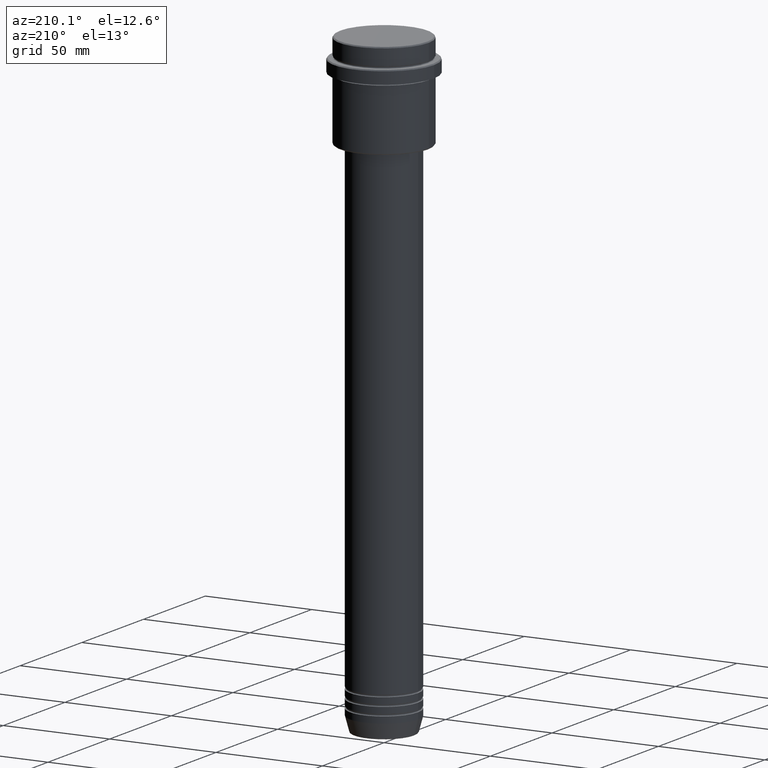
[diagram: clean part render]
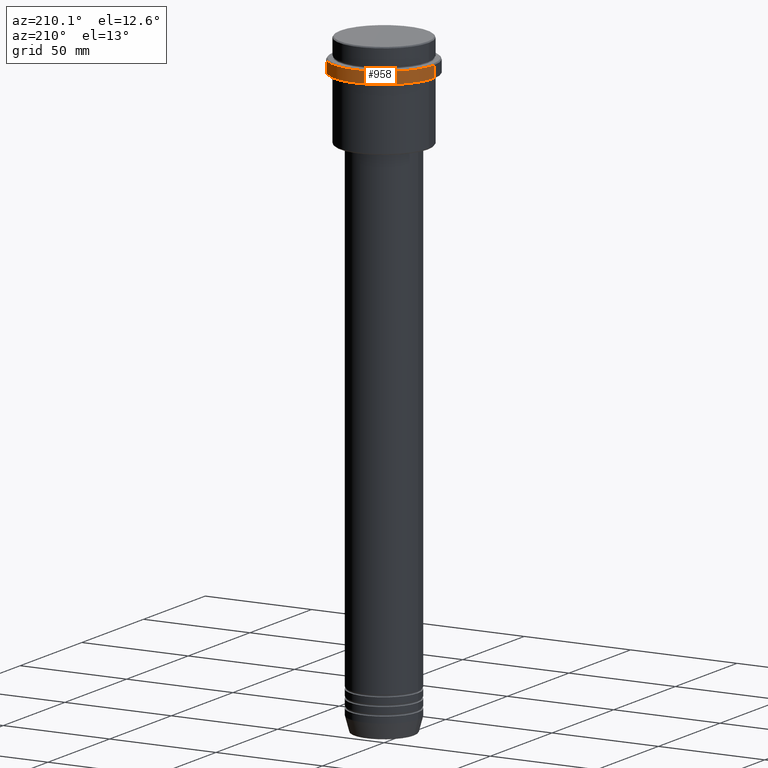
[diagram: same view with one face highlighted and labeled with its STEP entity id]
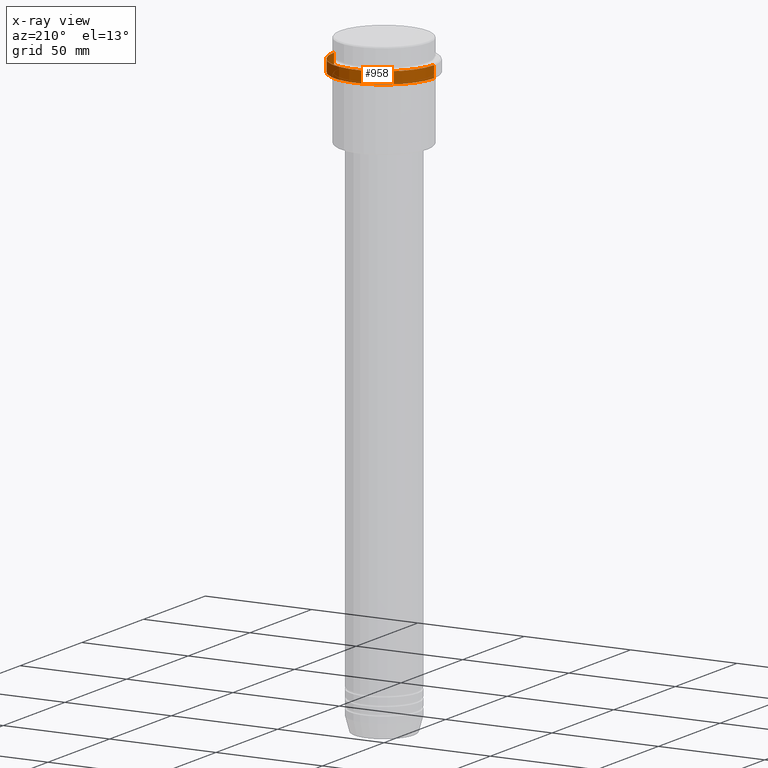
[diagram: x-ray of the same camera — body ghosted, the highlighted face saturated]
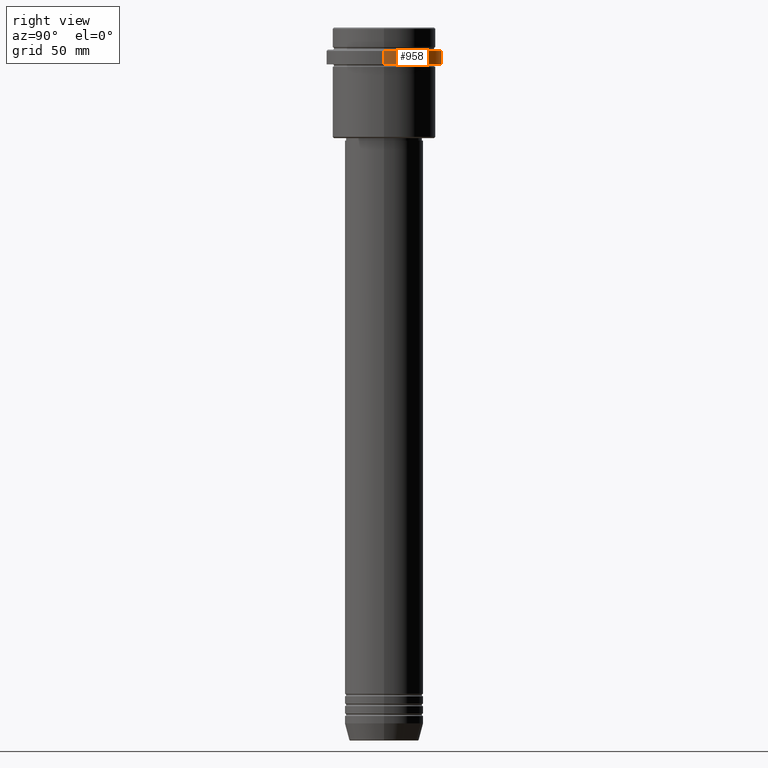
[diagram: same view with one face highlighted and labeled with its STEP entity id]
A machine part, auxiliary view. The second image highlights one B-rep face of the part: STEP entity #958.
The next image is the same camera in x-ray: the body ghosted, the highlighted face saturated — about 0% of this face is hidden behind the body in this view.
A second angle (right view) of the same face is appended — the face is thin or edge-on in the first view.
In plain terms, the highlighted cylindrical surface (partial cylindrical patch) has radius 23.5 mm, axis along (-0, -0, 1).
Its self-contained STEP definition (entity closure, byte-faithful):
#3 = CARTESIAN_POINT ( 'NONE',  ( 0.000000000000000000, 0.000000000000000000, -15.00000000000000000 ) ) ;
#9 = VECTOR ( 'NONE', #204, 1000.000000000000000 ) ;
#66 = ORIENTED_EDGE ( 'NONE', *, *, #466, .T. ) ;
#67 = LINE ( 'NONE', #608, #830 ) ;
#70 = ORIENTED_EDGE ( 'NONE', *, *, #974, .T. ) ;
#97 = VERTEX_POINT ( 'NONE', #1396 ) ;
#100 = LINE ( 'NONE', #641, #9 ) ;
#182 = DIRECTION ( 'NONE',  ( 1.000000000000000000, 0.000000000000000000, 0.000000000000000000 ) ) ;
#183 = CARTESIAN_POINT ( 'NONE',  ( 23.50000000000000000, 0.000000000000000000, -9.499999999999971578 ) ) ;
#188 = CARTESIAN_POINT ( 'NONE',  ( 0.000000000000000000, 0.000000000000000000, 0.000000000000000000 ) ) ;
#204 = DIRECTION ( 'NONE',  ( -0.000000000000000000, -0.000000000000000000, 1.000000000000000000 ) ) ;
#209 = FACE_OUTER_BOUND ( 'NONE', #916, .T. ) ;
#239 = AXIS2_PLACEMENT_3D ( 'NONE', #188, #534, #182 ) ;
#270 = DIRECTION ( 'NONE',  ( -0.000000000000000000, -0.000000000000000000, 1.000000000000000000 ) ) ;
#433 = DIRECTION ( 'NONE',  ( -0.000000000000000000, -0.000000000000000000, 1.000000000000000000 ) ) ;
#466 = EDGE_CURVE ( 'NONE', #1192, #97, #100, .T. ) ;
#494 = VERTEX_POINT ( 'NONE', #528 ) ;
#513 = DIRECTION ( 'NONE',  ( 1.000000000000000000, 0.000000000000000000, 0.000000000000000000 ) ) ;
#528 = CARTESIAN_POINT ( 'NONE',  ( 23.50000000000000355, 0.000000000000000000, -15.00000000000000000 ) ) ;
#534 = DIRECTION ( 'NONE',  ( -0.000000000000000000, -0.000000000000000000, 1.000000000000000000 ) ) ;
#608 = CARTESIAN_POINT ( 'NONE',  ( 23.50000000000000000, 0.000000000000000000, 0.000000000000000000 ) ) ;
#619 = CARTESIAN_POINT ( 'NONE',  ( 0.000000000000000000, 0.000000000000000000, -9.499999999999971578 ) ) ;
#641 = CARTESIAN_POINT ( 'NONE',  ( -23.50000000000000000, 2.877919977996280320E-15, 0.000000000000000000 ) ) ;
#708 = EDGE_CURVE ( 'NONE', #494, #1246, #67, .T. ) ;
#732 = CYLINDRICAL_SURFACE ( 'NONE', #239, 23.50000000000000000 ) ;
#830 = VECTOR ( 'NONE', #270, 1000.000000000000000 ) ;
#831 = CIRCLE ( 'NONE', #1017, 23.50000000000000000 ) ;
#845 = DIRECTION ( 'NONE',  ( 0.000000000000000000, 0.000000000000000000, -1.000000000000000000 ) ) ;
#916 = EDGE_LOOP ( 'NONE', ( #1027, #66, #70, #922 ) ) ;
#922 = ORIENTED_EDGE ( 'NONE', *, *, #708, .F. ) ;
#958 = ADVANCED_FACE ( 'NONE', ( #209 ), #732, .T. ) ;
#974 = EDGE_CURVE ( 'NONE', #97, #1246, #831, .T. ) ;
#1017 = AXIS2_PLACEMENT_3D ( 'NONE', #619, #845, #513 ) ;
#1027 = ORIENTED_EDGE ( 'NONE', *, *, #1390, .T. ) ;
#1041 = AXIS2_PLACEMENT_3D ( 'NONE', #3, #433, #1307 ) ;
#1192 = VERTEX_POINT ( 'NONE', #1236 ) ;
#1202 = CIRCLE ( 'NONE', #1041, 23.50000000000000355 ) ;
#1236 = CARTESIAN_POINT ( 'NONE',  ( -23.50000000000000711, 2.877919977996281109E-15, -15.00000000000000000 ) ) ;
#1246 = VERTEX_POINT ( 'NONE', #183 ) ;
#1307 = DIRECTION ( 'NONE',  ( 1.000000000000000000, 0.000000000000000000, 0.000000000000000000 ) ) ;
#1390 = EDGE_CURVE ( 'NONE', #494, #1192, #1202, .T. ) ;
#1396 = CARTESIAN_POINT ( 'NONE',  ( -23.50000000000000000, 2.877919977996280320E-15, -9.499999999999971578 ) ) ;